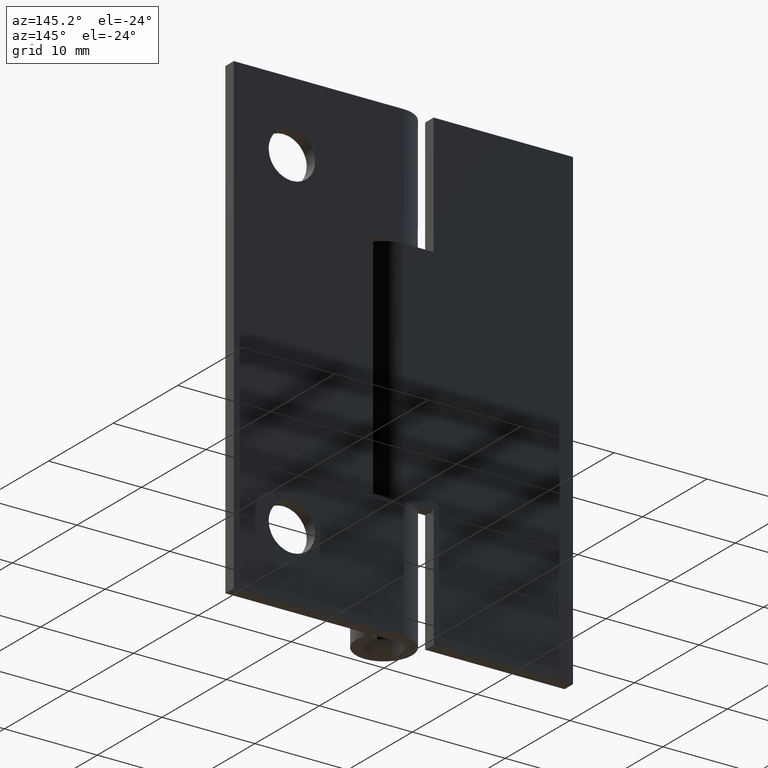
[diagram: clean part render]
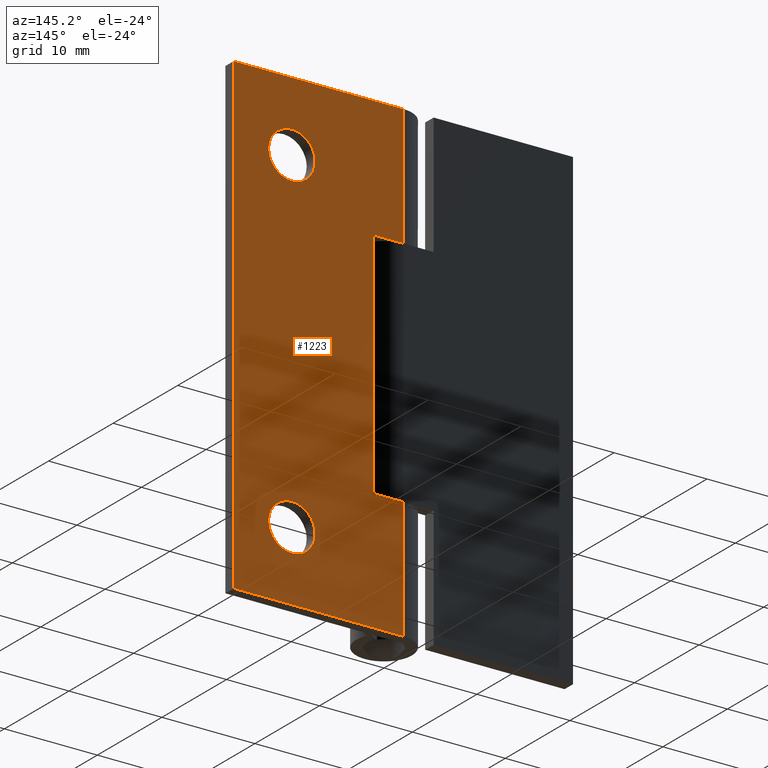
[diagram: same view with one face highlighted and labeled with its STEP entity id]
A machine part, auxiliary view. The second image highlights one B-rep face of the part: STEP entity #1223.
In plain terms, the highlighted face is a freeform B-spline surface patch.
Its self-contained STEP definition (entity closure, byte-faithful):
#517=CARTESIAN_POINT('',(13.752273259840051,3.000001999999955,41.716865773621812));
#518=VERTEX_POINT('',#517);
#519=CARTESIAN_POINT('',(12.0,3.000002000000055,40.999992000000098));
#520=VERTEX_POINT('',#519);
#521=CARTESIAN_POINT('',(13.752273259840051,3.000001999999955,41.716865773621812));
#522=CARTESIAN_POINT('',(13.644084845617749,3.000001999999968,41.610536573588973));
#523=CARTESIAN_POINT('',(13.376850977027230,3.000001999999968,41.391911875575552));
#524=CARTESIAN_POINT('',(12.934249453332329,3.000002000000009,41.161838175261067));
#525=CARTESIAN_POINT('',(12.455077877053281,3.000002000000015,41.027689830706052));
#526=CARTESIAN_POINT('',(12.151694098271751,3.000002000000062,40.999979164308670));
#527=CARTESIAN_POINT('',(12.0,3.000002000000055,40.999992000000098));
#528=B_SPLINE_CURVE_WITH_KNOTS('',3,(#521,#522,#523,#524,#525,#526,#527),.UNSPECIFIED.,.F.,.U.,(4,1,1,1,4),(0.000000016604659,0.455083194958950,1.031515764647423,1.486607582253309,1.941690760595911),.UNSPECIFIED.);
#529=EDGE_CURVE('',#518,#520,#528,.T.);
#531=CARTESIAN_POINT('',(9.500000000000066,3.000002000000055,43.499992573166267));
#532=VERTEX_POINT('',#531);
#533=CARTESIAN_POINT('',(12.0,3.000002000000055,40.999992000000098));
#534=CARTESIAN_POINT('',(11.713627694830000,3.000002000000043,40.999803016308533));
#535=CARTESIAN_POINT('',(11.284250864014499,3.000002000000076,41.074596603550809));
#536=CARTESIAN_POINT('',(10.789682905145700,3.000002000000037,41.301248922674610));
#537=CARTESIAN_POINT('',(10.396013421300260,3.000002000000066,41.560730044823167));
#538=CARTESIAN_POINT('',(10.043887661275670,3.000002000000049,41.908553475305638));
#539=CARTESIAN_POINT('',(9.763550875287384,3.000002000000047,42.351355534876653));
#540=CARTESIAN_POINT('',(9.557717873658030,3.000002000000097,42.866004876979211));
#541=CARTESIAN_POINT('',(9.499884681082184,3.000001999999999,43.254540095432077));
#542=CARTESIAN_POINT('',(9.500000000000066,3.000002000000055,43.499992573166267));
#543=B_SPLINE_CURVE_WITH_KNOTS('',3,(#533,#534,#535,#536,#537,#538,#539,#540,#541,#542),.UNSPECIFIED.,.F.,.U.,(4,1,1,1,1,1,1,4),(0.000000067570781,0.859032840710683,1.288553171187437,1.626033066872670,2.270291378938815,2.761179268781540,3.190701723991715,3.927015780240234),.UNSPECIFIED.);
#544=EDGE_CURVE('',#520,#532,#543,.T.);
#546=CARTESIAN_POINT('',(10.247726740159949,3.000001999999955,45.283118226378392));
#547=VERTEX_POINT('',#546);
#548=CARTESIAN_POINT('',(9.500000000000066,3.000002000000055,43.499992573166267));
#549=CARTESIAN_POINT('',(9.499973224072106,3.000002000000047,43.675777437655547));
#550=CARTESIAN_POINT('',(9.532860545742294,3.000002000000029,43.985971623448030));
#551=CARTESIAN_POINT('',(9.678962323445818,3.000001999999996,44.472849629608262));
#552=CARTESIAN_POINT('',(9.909324615605234,3.000001999999973,44.904602181165153));
#553=CARTESIAN_POINT('',(10.137095813036330,3.000001999999969,45.174411884997767));
#554=CARTESIAN_POINT('',(10.247726740159949,3.000001999999955,45.283118226378392));
#555=B_SPLINE_CURVE_WITH_KNOTS('',3,(#548,#549,#550,#551,#552,#553,#554),.UNSPECIFIED.,.F.,.U.,(4,1,1,1,4),(0.000000018556471,0.527352397079508,0.930628728298192,1.520014510318998,1.985324245036265),.UNSPECIFIED.);
#556=EDGE_CURVE('',#532,#547,#555,.T.);
#629=CARTESIAN_POINT('',(14.499999999999931,3.000002000000055,43.499991426833958));
#630=VERTEX_POINT('',#629);
#631=CARTESIAN_POINT('',(14.499999999999931,3.000002000000055,43.499991426833958));
#632=CARTESIAN_POINT('',(14.500024107729139,3.000002000000047,43.324206966943791));
#633=CARTESIAN_POINT('',(14.463869716834781,3.000002000000026,42.982993938542272));
#634=CARTESIAN_POINT('',(14.314786910676521,3.000001999999989,42.517917507581153));
#635=CARTESIAN_POINT('',(14.082482029131709,3.000001999999992,42.088957482770759));
#636=CARTESIAN_POINT('',(13.877669441339711,3.000001999999958,41.840055581309841));
#637=CARTESIAN_POINT('',(13.752273259840051,3.000001999999955,41.716865773621812));
#638=B_SPLINE_CURVE_WITH_KNOTS('',3,(#631,#632,#633,#634,#635,#636,#637),.UNSPECIFIED.,.F.,.U.,(4,1,1,1,4),(0.000000018554974,0.527352397079052,1.023672102365137,1.457971866501395,1.985324245036288),.UNSPECIFIED.);
#639=EDGE_CURVE('',#630,#518,#638,.T.);
#678=CARTESIAN_POINT('',(12.0,3.000002000000055,45.999992000000098));
#679=VERTEX_POINT('',#678);
#680=CARTESIAN_POINT('',(10.247726740159949,3.000001999999955,45.283118226378392));
#681=CARTESIAN_POINT('',(10.420780340739951,3.000001999999967,45.453316724326037));
#682=CARTESIAN_POINT('',(10.717932536750540,3.000001999999982,45.670245662039413));
#683=CARTESIAN_POINT('',(11.312436286127850,3.000002000000018,45.930488086045578));
#684=CARTESIAN_POINT('',(11.716797935888451,3.000002000000038,46.000205730221978));
#685=CARTESIAN_POINT('',(12.0,3.000002000000055,45.999992000000098));
#686=B_SPLINE_CURVE_WITH_KNOTS('',3,(#680,#681,#682,#683,#684,#685),.UNSPECIFIED.,.F.,.U.,(4,1,1,4),(0.000000016604664,0.728134313540665,1.092192483955985,1.941690760595954),.UNSPECIFIED.);
#687=EDGE_CURVE('',#547,#679,#686,.T.);
#689=CARTESIAN_POINT('',(12.0,3.000002000000055,45.999992000000098));
#690=CARTESIAN_POINT('',(12.184079485833299,3.000002000000055,46.000026038744600));
#691=CARTESIAN_POINT('',(12.541990478152060,3.000002000000056,45.960273498184613));
#692=CARTESIAN_POINT('',(13.116902676062610,3.000002000000054,45.766529634621833));
#693=CARTESIAN_POINT('',(13.628143849531851,3.000002000000053,45.433927734747883));
#694=CARTESIAN_POINT('',(14.056520751225101,3.000002000000058,44.961199069212732));
#695=CARTESIAN_POINT('',(14.309900861240850,3.000002000000050,44.500839378076009));
#696=CARTESIAN_POINT('',(14.464815006793900,3.000002000000074,44.001073509936468));
#697=CARTESIAN_POINT('',(14.500035523047440,3.000002000000000,43.684068840602912));
#698=CARTESIAN_POINT('',(14.499999999999931,3.000002000000055,43.499991426833958));
#699=B_SPLINE_CURVE_WITH_KNOTS('',3,(#689,#690,#691,#692,#693,#694,#695,#696,#697,#698),.UNSPECIFIED.,.F.,.U.,(4,1,1,1,1,1,1,4),(0.000000067586571,0.552234635836199,1.073795703212602,1.810122183272283,2.362335641804659,2.975942304523729,3.374788662541971,3.927015780240172),.UNSPECIFIED.);
#700=EDGE_CURVE('',#679,#630,#699,.T.);
#723=CARTESIAN_POINT('',(13.752273259840051,3.000001999999955,5.716873773621817));
#724=VERTEX_POINT('',#723);
#725=CARTESIAN_POINT('',(12.0,3.000002000000055,5.000000000000100));
#726=VERTEX_POINT('',#725);
#727=CARTESIAN_POINT('',(13.752273259840051,3.000001999999955,5.716873773621817));
#728=CARTESIAN_POINT('',(13.629666355323801,3.000001999999960,5.596355575738467));
#729=CARTESIAN_POINT('',(13.367407342948590,3.000001999999971,5.387122025646780));
#730=CARTESIAN_POINT('',(12.924268802905621,3.000002000000011,5.160162363468555));
#731=CARTESIAN_POINT('',(12.465193542473511,3.000002000000016,5.028619030346145));
#732=CARTESIAN_POINT('',(12.151694243234070,3.000002000000055,4.999985403878347));
#733=CARTESIAN_POINT('',(12.0,3.000002000000055,5.000000000000100));
#734=B_SPLINE_CURVE_WITH_KNOTS('',3,(#727,#728,#729,#730,#731,#732,#733),.UNSPECIFIED.,.F.,.U.,(4,1,1,1,4),(0.000000016607781,0.515762210259618,1.001174272493138,1.486607582253717,1.941690760595906),.UNSPECIFIED.);
#735=EDGE_CURVE('',#724,#726,#734,.T.);
#737=CARTESIAN_POINT('',(9.500000000000068,3.000002000000055,7.500000573166274));
#738=VERTEX_POINT('',#737);
#739=CARTESIAN_POINT('',(12.0,3.000002000000055,5.000000000000100));
#740=CARTESIAN_POINT('',(11.815920246014331,3.000002000000051,4.999968442891347));
#741=CARTESIAN_POINT('',(11.468232218477240,3.000002000000078,5.038574507958965));
#742=CARTESIAN_POINT('',(10.999878212128101,3.000002000000008,5.193297044020943));
#743=CARTESIAN_POINT('',(10.631197470343240,3.000002000000113,5.396232839326924));
#744=CARTESIAN_POINT('',(10.306444189379929,3.000001999999997,5.646487671767856));
#745=CARTESIAN_POINT('',(9.989803437087577,3.000002000000138,5.983117702476928));
#746=CARTESIAN_POINT('',(9.759879839927727,3.000001999999999,6.361458297308338));
#747=CARTESIAN_POINT('',(9.557655376717603,3.000002000000106,6.876261834472444));
#748=CARTESIAN_POINT('',(9.499839939404513,3.000002000000008,7.234084256187171));
#749=CARTESIAN_POINT('',(9.500000000000068,3.000002000000055,7.500000573166274));
#750=B_SPLINE_CURVE_WITH_KNOTS('',3,(#739,#740,#741,#742,#743,#744,#745,#746,#747,#748,#749),.UNSPECIFIED.,.F.,.U.,(4,1,1,1,1,1,1,1,4),(0.000000067574822,0.552234635826650,1.043114157664333,1.472638871437749,1.810122183267291,2.270291378939173,2.853221379189820,3.129344441599043,3.927015780240235),.UNSPECIFIED.);
#751=EDGE_CURVE('',#726,#738,#750,.T.);
#753=CARTESIAN_POINT('',(10.247726740159941,3.000001999999955,9.283126226378391));
#754=VERTEX_POINT('',#753);
#755=CARTESIAN_POINT('',(9.500000000000068,3.000002000000055,7.500000573166274));
#756=CARTESIAN_POINT('',(9.499987121731724,3.000002000000055,7.655103049840236));
#757=CARTESIAN_POINT('',(9.531840054655913,3.000002000000018,7.996322917994212));
#758=CARTESIAN_POINT('',(9.681404904738436,3.000002000000001,8.483726841495779));
#759=CARTESIAN_POINT('',(9.929446846615964,3.000001999999983,8.928397334822044));
#760=CARTESIAN_POINT('',(10.137088508047770,3.000001999999955,9.174424336931306));
#761=CARTESIAN_POINT('',(10.247726740159941,3.000001999999955,9.283126226378391));
#762=B_SPLINE_CURVE_WITH_KNOTS('',3,(#755,#756,#757,#758,#759,#760,#761),.UNSPECIFIED.,.F.,.U.,(4,1,1,1,4),(0.000000018554571,0.465309753260326,1.023672102364331,1.520014510318862,1.985324245036254),.UNSPECIFIED.);
#763=EDGE_CURVE('',#738,#754,#762,.T.);
#837=CARTESIAN_POINT('',(14.499999999999940,3.000002000000055,7.499999426833965));
#838=VERTEX_POINT('',#837);
#839=CARTESIAN_POINT('',(14.499999999999940,3.000002000000055,7.499999426833965));
#840=CARTESIAN_POINT('',(14.500009476497850,3.000002000000044,7.344898574349045));
#841=CARTESIAN_POINT('',(14.467209793246109,3.000002000000028,6.993328642064427));
#842=CARTESIAN_POINT('',(14.320729128492649,3.000001999999999,6.526402838094898));
#843=CARTESIAN_POINT('',(14.075863682329960,3.000001999999974,6.080939967854044));
#844=CARTESIAN_POINT('',(13.877672582825850,3.000001999999974,5.840062432647510));
#845=CARTESIAN_POINT('',(13.752273259840051,3.000001999999955,5.716873773621817));
#846=B_SPLINE_CURVE_WITH_KNOTS('',3,(#839,#840,#841,#842,#843,#844,#845),.UNSPECIFIED.,.F.,.U.,(4,1,1,1,4),(0.000000018554953,0.465309753260502,1.054695535276932,1.457971866501146,1.985324245036291),.UNSPECIFIED.);
#847=EDGE_CURVE('',#838,#724,#846,.T.);
#888=CARTESIAN_POINT('',(12.0,3.000002000000055,10.000000000000099));
#889=VERTEX_POINT('',#888);
#890=CARTESIAN_POINT('',(10.247726740159941,3.000001999999955,9.283126226378391));
#891=CARTESIAN_POINT('',(10.370337740973550,3.000001999999966,9.403635354555098));
#892=CARTESIAN_POINT('',(10.664365264163949,3.000001999999976,9.638281402989703));
#893=CARTESIAN_POINT('',(11.251733405056610,3.000002000000013,9.921313296828197));
#894=CARTESIAN_POINT('',(11.726928695133759,3.000002000000041,10.000177676474090));
#895=CARTESIAN_POINT('',(12.0,3.000002000000055,10.000000000000099));
#896=B_SPLINE_CURVE_WITH_KNOTS('',3,(#890,#891,#892,#893,#894,#895),.UNSPECIFIED.,.F.,.U.,(4,1,1,4),(0.000000016607697,0.515762210259803,1.122536389566126,1.941690760595914),.UNSPECIFIED.);
#897=EDGE_CURVE('',#754,#889,#896,.T.);
#899=CARTESIAN_POINT('',(12.0,3.000002000000055,10.000000000000099));
#900=CARTESIAN_POINT('',(12.296615944173370,3.000002000000066,10.000250416120830));
#901=CARTESIAN_POINT('',(12.685055675496301,3.000002000000039,9.930036778791735));
#902=CARTESIAN_POINT('',(13.192045647412559,3.000002000000063,9.708951648604227));
#903=CARTESIAN_POINT('',(13.582748364544610,3.000002000000055,9.461607863126208));
#904=CARTESIAN_POINT('',(13.947026537569560,3.000002000000043,9.097310442842765));
#905=CARTESIAN_POINT('',(14.210062085553920,3.000002000000093,8.692906833298283));
#906=CARTESIAN_POINT('',(14.431529419318640,3.000001999999998,8.185083439718529));
#907=CARTESIAN_POINT('',(14.500167433811351,3.000002000000081,7.776142293465950));
#908=CARTESIAN_POINT('',(14.499999999999940,3.000002000000055,7.499999426833965));
#909=B_SPLINE_CURVE_WITH_KNOTS('',3,(#899,#900,#901,#902,#903,#904,#905,#906,#907,#908),.UNSPECIFIED.,.F.,.U.,(4,1,1,1,1,1,1,4),(0.000000067583378,0.889714048122326,1.165837633834836,1.656725390524143,2.270291378942098,2.699821986405382,3.098662261207753,3.927015780240169),.UNSPECIFIED.);
#910=EDGE_CURVE('',#889,#838,#909,.T.);
#968=CARTESIAN_POINT('',(0.0,3.000002000000000,13.000000000000121));
#969=VERTEX_POINT('',#968);
#989=CARTESIAN_POINT('',(0.0,3.000002000000000,0.0));
#990=VERTEX_POINT('',#989);
#991=CARTESIAN_POINT('',(0.0,3.000002000000000,13.000000000000121));
#992=CARTESIAN_POINT('',(0.0,3.000002000000000,0.0));
#993=QUASI_UNIFORM_CURVE('',1,(#991,#992),.UNSPECIFIED.,.F.,.U.);
#994=EDGE_CURVE('',#969,#990,#993,.T.);
#1060=CARTESIAN_POINT('',(0.0,3.000002000000000,50.999992000000098));
#1061=VERTEX_POINT('',#1060);
#1062=CARTESIAN_POINT('',(0.0,3.000002000000000,37.999992000000049));
#1063=VERTEX_POINT('',#1062);
#1064=CARTESIAN_POINT('',(0.0,3.000002000000000,50.999992000000098));
#1065=CARTESIAN_POINT('',(0.0,3.000002000000000,37.999992000000049));
#1066=QUASI_UNIFORM_CURVE('',1,(#1064,#1065),.UNSPECIFIED.,.F.,.U.);
#1067=EDGE_CURVE('',#1061,#1063,#1066,.T.);
#1160=CARTESIAN_POINT('',(-0.911587464627960,3.000002000000000,53.547441501552242));
#1161=CARTESIAN_POINT('',(-0.911587464627960,3.000002000000000,-2.547450869478507));
#1162=CARTESIAN_POINT('',(19.161587954131111,3.000002000000000,53.547441501552242));
#1163=CARTESIAN_POINT('',(19.161587954131111,3.000002000000000,-2.547450869478507));
#1164=B_SPLINE_SURFACE_WITH_KNOTS('',1,1,((#1160,#1162),(#1161,#1163)),.UNSPECIFIED.,.F.,.F.,.U.,(2,2),(2,2),(0.0,56.094892371030753),(0.0,20.073175418759071),.UNSPECIFIED.);
#1165=CARTESIAN_POINT('',(3.250000000000000,3.000002000000055,37.999992000000013));
#1166=VERTEX_POINT('',#1165);
#1167=CARTESIAN_POINT('',(0.0,3.000002000000000,37.999992000000049));
#1168=CARTESIAN_POINT('',(3.250000000000000,3.000002000000055,37.999992000000013));
#1169=QUASI_UNIFORM_CURVE('',1,(#1167,#1168),.UNSPECIFIED.,.F.,.U.);
#1170=EDGE_CURVE('',#1063,#1166,#1169,.T.);
#1171=ORIENTED_EDGE('',*,*,#1170,.F.);
#1172=ORIENTED_EDGE('',*,*,#1067,.F.);
#1173=CARTESIAN_POINT('',(18.250000000000000,3.000002000000000,50.999992000000098));
#1174=VERTEX_POINT('',#1173);
#1175=CARTESIAN_POINT('',(18.250000000000000,3.000002000000000,50.999992000000098));
#1176=CARTESIAN_POINT('',(0.0,3.000002000000000,50.999992000000098));
#1177=QUASI_UNIFORM_CURVE('',1,(#1175,#1176),.UNSPECIFIED.,.F.,.U.);
#1178=EDGE_CURVE('',#1174,#1061,#1177,.T.);
#1179=ORIENTED_EDGE('',*,*,#1178,.F.);
#1180=CARTESIAN_POINT('',(18.250000000000000,3.000002000000000,0.0));
#1181=VERTEX_POINT('',#1180);
#1182=CARTESIAN_POINT('',(18.250000000000000,3.000002000000000,50.999992000000098));
#1183=CARTESIAN_POINT('',(18.250000000000000,3.000002000000000,0.0));
#1184=QUASI_UNIFORM_CURVE('',1,(#1182,#1183),.UNSPECIFIED.,.F.,.U.);
#1185=EDGE_CURVE('',#1174,#1181,#1184,.T.);
#1186=ORIENTED_EDGE('',*,*,#1185,.T.);
#1187=CARTESIAN_POINT('',(18.250000000000000,3.000002000000000,0.0));
#1188=CARTESIAN_POINT('',(0.0,3.000002000000000,0.0));
#1189=QUASI_UNIFORM_CURVE('',1,(#1187,#1188),.UNSPECIFIED.,.F.,.U.);
#1190=EDGE_CURVE('',#1181,#990,#1189,.T.);
#1191=ORIENTED_EDGE('',*,*,#1190,.T.);
#1192=ORIENTED_EDGE('',*,*,#994,.F.);
#1193=CARTESIAN_POINT('',(3.250000000000000,3.000002000000055,13.0));
#1194=VERTEX_POINT('',#1193);
#1195=CARTESIAN_POINT('',(3.250000000000000,3.000002000000055,13.0));
#1196=CARTESIAN_POINT('',(0.0,3.000002000000000,13.000000000000121));
#1197=QUASI_UNIFORM_CURVE('',1,(#1195,#1196),.UNSPECIFIED.,.F.,.U.);
#1198=EDGE_CURVE('',#1194,#969,#1197,.T.);
#1199=ORIENTED_EDGE('',*,*,#1198,.F.);
#1200=CARTESIAN_POINT('',(3.250000000000000,3.000002000000055,37.999992000000013));
#1201=CARTESIAN_POINT('',(3.250000000000000,3.000002000000055,13.0));
#1202=QUASI_UNIFORM_CURVE('',1,(#1200,#1201),.UNSPECIFIED.,.F.,.U.);
#1203=EDGE_CURVE('',#1166,#1194,#1202,.T.);
#1204=ORIENTED_EDGE('',*,*,#1203,.F.);
#1205=EDGE_LOOP('',(#1171,#1172,#1179,#1186,#1191,#1192,#1199,#1204));
#1206=FACE_OUTER_BOUND('',#1205,.T.);
#1207=ORIENTED_EDGE('',*,*,#751,.F.);
#1208=ORIENTED_EDGE('',*,*,#735,.F.);
#1209=ORIENTED_EDGE('',*,*,#847,.F.);
#1210=ORIENTED_EDGE('',*,*,#910,.F.);
#1211=ORIENTED_EDGE('',*,*,#897,.F.);
#1212=ORIENTED_EDGE('',*,*,#763,.F.);
#1213=EDGE_LOOP('',(#1207,#1208,#1209,#1210,#1211,#1212));
#1214=FACE_BOUND('',#1213,.T.);
#1215=ORIENTED_EDGE('',*,*,#544,.F.);
#1216=ORIENTED_EDGE('',*,*,#529,.F.);
#1217=ORIENTED_EDGE('',*,*,#639,.F.);
#1218=ORIENTED_EDGE('',*,*,#700,.F.);
#1219=ORIENTED_EDGE('',*,*,#687,.F.);
#1220=ORIENTED_EDGE('',*,*,#556,.F.);
#1221=EDGE_LOOP('',(#1215,#1216,#1217,#1218,#1219,#1220));
#1222=FACE_BOUND('',#1221,.T.);
#1223=ADVANCED_FACE('',(#1206,#1214,#1222),#1164,.F.);